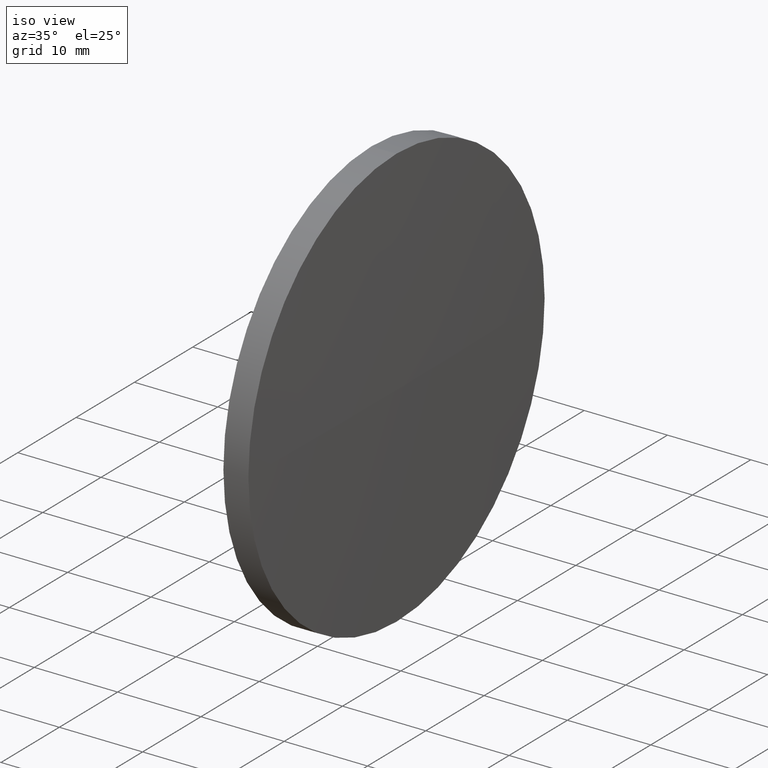
[diagram: clean part render]
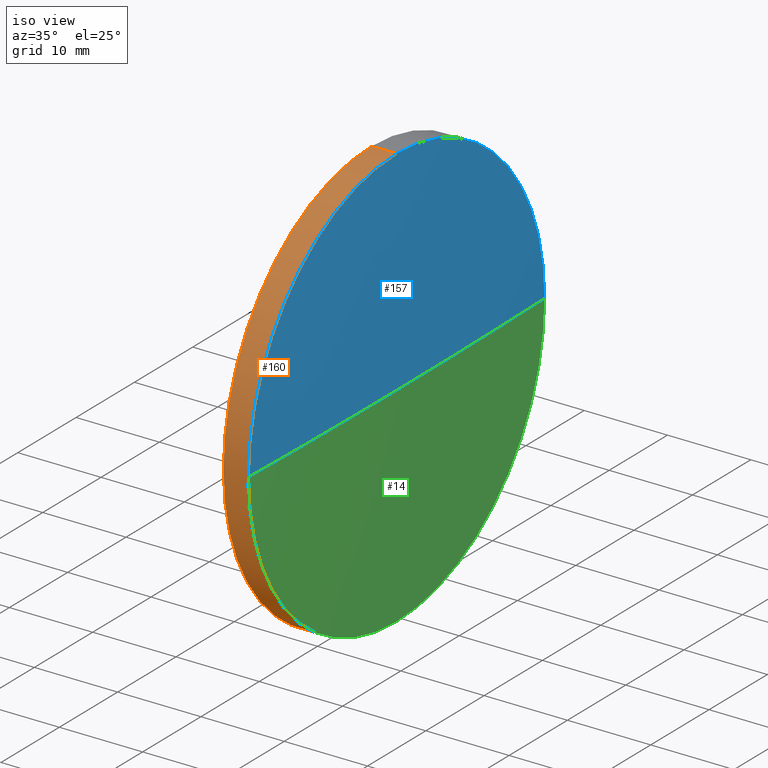
[diagram: same view with three faces highlighted in distinct colors, each labeled with its STEP entity id]
A machine part, iso view with three faces highlighted in distinct colors.
Their STEP definitions:

[orange] entity #160 — the highlighted cylindrical surface (partial cylindrical patch) has radius 25.4 mm, axis along (-1, -0, -0).
#1 = VECTOR ( 'NONE', #315, 1000.000000000000000 ) ;
#7 = VERTEX_POINT ( 'NONE', #260 ) ;
#22 = CARTESIAN_POINT ( 'NONE',  ( 165.7441079421506900, 97.23222604636956100, 0.0000000000000000000 ) ) ;
#42 = VERTEX_POINT ( 'NONE', #332 ) ;
#43 = DIRECTION ( 'NONE',  ( 0.0000000000000000000, 0.0000000000000000000, 1.000000000000000000 ) ) ;
#47 = ORIENTED_EDGE ( 'NONE', *, *, #316, .F. ) ;
#48 = VECTOR ( 'NONE', #186, 1000.000000000000000 ) ;
#64 = AXIS2_PLACEMENT_3D ( 'NONE', #304, #170, #297 ) ;
#81 = EDGE_CURVE ( 'NONE', #285, #42, #266, .T. ) ;
#89 = ORIENTED_EDGE ( 'NONE', *, *, #90, .T. ) ;
#90 = EDGE_CURVE ( 'NONE', #285, #7, #126, .T. ) ;
#95 = AXIS2_PLACEMENT_3D ( 'NONE', #293, #124, #291 ) ;
#105 = CARTESIAN_POINT ( 'NONE',  ( 171.4164086921822200, 97.23222604636956100, 0.0000000000000000000 ) ) ;
#108 = CIRCLE ( 'NONE', #64, 25.39999999999999100 ) ;
#124 = DIRECTION ( 'NONE',  ( -1.000000000000000000, -0.0000000000000000000, -0.0000000000000000000 ) ) ;
#126 = CIRCLE ( 'NONE', #95, 25.39999999999999100 ) ;
#136 = EDGE_CURVE ( 'NONE', #223, #199, #270, .T. ) ;
#138 = CYLINDRICAL_SURFACE ( 'NONE', #246, 25.39999999999999100 ) ;
#160 = ADVANCED_FACE ( 'NONE', ( #234 ), #138, .T. ) ;
#162 = ORIENTED_EDGE ( 'NONE', *, *, #136, .T. ) ;
#169 = DIRECTION ( 'NONE',  ( 0.0000000000000000000, 0.0000000000000000000, 1.000000000000000000 ) ) ;
#170 = DIRECTION ( 'NONE',  ( -1.000000000000000000, -0.0000000000000000000, -0.0000000000000000000 ) ) ;
#184 = EDGE_CURVE ( 'NONE', #219, #199, #207, .T. ) ;
#185 = ORIENTED_EDGE ( 'NONE', *, *, #184, .F. ) ;
#186 = DIRECTION ( 'NONE',  ( -1.000000000000000000, -0.0000000000000000000, -0.0000000000000000000 ) ) ;
#199 = VERTEX_POINT ( 'NONE', #317 ) ;
#202 = EDGE_LOOP ( 'NONE', ( #233, #89, #259, #162, #185, #47 ) ) ;
#207 = CIRCLE ( 'NONE', #257, 25.39999999999999100 ) ;
#215 = CARTESIAN_POINT ( 'NONE',  ( 171.4164086921822200, 71.83222604637038000, -3.110602869834187700E-015 ) ) ;
#219 = VERTEX_POINT ( 'NONE', #215 ) ;
#221 = DIRECTION ( 'NONE',  ( -1.000000000000000000, -0.0000000000000000000, -0.0000000000000000000 ) ) ;
#223 = VERTEX_POINT ( 'NONE', #320 ) ;
#233 = ORIENTED_EDGE ( 'NONE', *, *, #81, .F. ) ;
#234 = FACE_OUTER_BOUND ( 'NONE', #202, .T. ) ;
#238 = EDGE_CURVE ( 'NONE', #7, #223, #256, .T. ) ;
#242 = CARTESIAN_POINT ( 'NONE',  ( 165.7441079421506900, 97.23222604636956100, 25.39999999999999100 ) ) ;
#245 = DIRECTION ( 'NONE',  ( -1.000000000000000000, -0.0000000000000000000, -0.0000000000000000000 ) ) ;
#246 = AXIS2_PLACEMENT_3D ( 'NONE', #22, #301, #43 ) ;
#248 = CARTESIAN_POINT ( 'NONE',  ( 174.4163664064679400, 97.23222604636956100, -25.39999999999999100 ) ) ;
#256 = CIRCLE ( 'NONE', #282, 25.39999999999999100 ) ;
#257 = AXIS2_PLACEMENT_3D ( 'NONE', #105, #221, #299 ) ;
#259 = ORIENTED_EDGE ( 'NONE', *, *, #238, .T. ) ;
#260 = CARTESIAN_POINT ( 'NONE',  ( 174.4163664064679700, 71.83222604636755200, -3.110602869834376700E-015 ) ) ;
#266 = LINE ( 'NONE', #337, #1 ) ;
#270 = LINE ( 'NONE', #242, #48 ) ;
#282 = AXIS2_PLACEMENT_3D ( 'NONE', #300, #245, #169 ) ;
#285 = VERTEX_POINT ( 'NONE', #248 ) ;
#291 = DIRECTION ( 'NONE',  ( 0.0000000000000000000, 0.0000000000000000000, 1.000000000000000000 ) ) ;
#293 = CARTESIAN_POINT ( 'NONE',  ( 174.4163664064679400, 97.23222604636956100, 0.0000000000000000000 ) ) ;
#297 = DIRECTION ( 'NONE',  ( 0.0000000000000000000, 0.0000000000000000000, 1.000000000000000000 ) ) ;
#299 = DIRECTION ( 'NONE',  ( 0.0000000000000000000, 0.0000000000000000000, 1.000000000000000000 ) ) ;
#300 = CARTESIAN_POINT ( 'NONE',  ( 174.4163664064679400, 97.23222604636956100, 0.0000000000000000000 ) ) ;
#301 = DIRECTION ( 'NONE',  ( -1.000000000000000000, -0.0000000000000000000, -0.0000000000000000000 ) ) ;
#304 = CARTESIAN_POINT ( 'NONE',  ( 171.4164086921822200, 97.23222604636956100, 0.0000000000000000000 ) ) ;
#315 = DIRECTION ( 'NONE',  ( -1.000000000000000000, -0.0000000000000000000, -0.0000000000000000000 ) ) ;
#316 = EDGE_CURVE ( 'NONE', #42, #219, #108, .T. ) ;
#317 = CARTESIAN_POINT ( 'NONE',  ( 171.4164086921822200, 97.23222604636956100, 25.39999999999999100 ) ) ;
#320 = CARTESIAN_POINT ( 'NONE',  ( 174.4163664064679400, 97.23222604636956100, 25.39999999999999100 ) ) ;
#332 = CARTESIAN_POINT ( 'NONE',  ( 171.4164086921822200, 97.23222604636956100, -25.39999999999999100 ) ) ;
#337 = CARTESIAN_POINT ( 'NONE',  ( 165.7441079421506900, 97.23222604636956100, -25.39999999999999100 ) ) ;

[blue] entity #157 — the highlighted spherical surface has radius 921.781 mm.
#2 = AXIS2_PLACEMENT_3D ( 'NONE', #11, #34, #241 ) ;
#6 = EDGE_CURVE ( 'NONE', #223, #303, #261, .T. ) ;
#7 = VERTEX_POINT ( 'NONE', #260 ) ;
#11 = CARTESIAN_POINT ( 'NONE',  ( 174.4163664064679400, 97.23222604636956100, 0.0000000000000000000 ) ) ;
#18 = CARTESIAN_POINT ( 'NONE',  ( 174.7663856636108100, 97.23222604636841000, 0.0000000000000000000 ) ) ;
#19 = ORIENTED_EDGE ( 'NONE', *, *, #238, .F. ) ;
#34 = DIRECTION ( 'NONE',  ( -1.000000000000000000, -0.0000000000000000000, -0.0000000000000000000 ) ) ;
#39 = CARTESIAN_POINT ( 'NONE',  ( 174.4163664064679700, 122.6322260463703800, 0.0000000000000000000 ) ) ;
#44 = DIRECTION ( 'NONE',  ( 0.0000000000000000000, 1.224646799147353200E-016, -1.000000000000000000 ) ) ;
#66 = DIRECTION ( 'NONE',  ( 0.0000000000000000000, 1.000000000000000000, 0.0000000000000000000 ) ) ;
#68 = CARTESIAN_POINT ( 'NONE',  ( -747.0150596599935400, 97.23222604636835300, 0.0000000000000000000 ) ) ;
#74 = ORIENTED_EDGE ( 'NONE', *, *, #165, .T. ) ;
#99 = CIRCLE ( 'NONE', #208, 921.7814453236043200 ) ;
#103 = DIRECTION ( 'NONE',  ( -0.0000000000000000000, 0.0000000000000000000, -1.000000000000000000 ) ) ;
#110 = ORIENTED_EDGE ( 'NONE', *, *, #255, .F. ) ;
#134 = CARTESIAN_POINT ( 'NONE',  ( -747.0150596599935400, 97.23222604636835300, 0.0000000000000000000 ) ) ;
#157 = ADVANCED_FACE ( 'NONE', ( #308 ), #343, .T. ) ;
#165 = EDGE_CURVE ( 'NONE', #335, #303, #201, .T. ) ;
#169 = DIRECTION ( 'NONE',  ( 0.0000000000000000000, 0.0000000000000000000, 1.000000000000000000 ) ) ;
#201 = CIRCLE ( 'NONE', #211, 921.7814453236044300 ) ;
#208 = AXIS2_PLACEMENT_3D ( 'NONE', #273, #44, #344 ) ;
#211 = AXIS2_PLACEMENT_3D ( 'NONE', #68, #272, #244 ) ;
#223 = VERTEX_POINT ( 'NONE', #320 ) ;
#228 = AXIS2_PLACEMENT_3D ( 'NONE', #134, #103, #66 ) ;
#238 = EDGE_CURVE ( 'NONE', #7, #223, #256, .T. ) ;
#241 = DIRECTION ( 'NONE',  ( 0.0000000000000000000, 0.0000000000000000000, 1.000000000000000000 ) ) ;
#244 = DIRECTION ( 'NONE',  ( 1.000000000000000000, 0.0000000000000000000, 0.0000000000000000000 ) ) ;
#245 = DIRECTION ( 'NONE',  ( -1.000000000000000000, -0.0000000000000000000, -0.0000000000000000000 ) ) ;
#255 = EDGE_CURVE ( 'NONE', #335, #7, #99, .T. ) ;
#256 = CIRCLE ( 'NONE', #282, 25.39999999999999100 ) ;
#260 = CARTESIAN_POINT ( 'NONE',  ( 174.4163664064679700, 71.83222604636755200, -3.110602869834376700E-015 ) ) ;
#261 = CIRCLE ( 'NONE', #2, 25.39999999999999100 ) ;
#272 = DIRECTION ( 'NONE',  ( -0.0000000000000000000, 0.0000000000000000000, 1.000000000000000000 ) ) ;
#273 = CARTESIAN_POINT ( 'NONE',  ( -747.0150596599935400, 97.23222604636835300, 0.0000000000000000000 ) ) ;
#282 = AXIS2_PLACEMENT_3D ( 'NONE', #300, #245, #169 ) ;
#300 = CARTESIAN_POINT ( 'NONE',  ( 174.4163664064679400, 97.23222604636956100, 0.0000000000000000000 ) ) ;
#303 = VERTEX_POINT ( 'NONE', #39 ) ;
#308 = FACE_OUTER_BOUND ( 'NONE', #325, .T. ) ;
#320 = CARTESIAN_POINT ( 'NONE',  ( 174.4163664064679400, 97.23222604636956100, 25.39999999999999100 ) ) ;
#325 = EDGE_LOOP ( 'NONE', ( #110, #74, #336, #19 ) ) ;
#335 = VERTEX_POINT ( 'NONE', #18 ) ;
#336 = ORIENTED_EDGE ( 'NONE', *, *, #6, .F. ) ;
#343 = SPHERICAL_SURFACE ( 'NONE', #228, 921.7814453236044300 ) ;
#344 = DIRECTION ( 'NONE',  ( 0.0000000000000000000, 1.000000000000000000, 1.224646799147353500E-016 ) ) ;

[green] entity #14 — the highlighted spherical surface has radius 921.781 mm.
#7 = VERTEX_POINT ( 'NONE', #260 ) ;
#14 = ADVANCED_FACE ( 'NONE', ( #328 ), #247, .T. ) ;
#18 = CARTESIAN_POINT ( 'NONE',  ( 174.7663856636108100, 97.23222604636841000, 0.0000000000000000000 ) ) ;
#36 = DIRECTION ( 'NONE',  ( 0.0000000000000000000, 1.000000000000000000, 0.0000000000000000000 ) ) ;
#39 = CARTESIAN_POINT ( 'NONE',  ( 174.4163664064679700, 122.6322260463703800, 0.0000000000000000000 ) ) ;
#44 = DIRECTION ( 'NONE',  ( 0.0000000000000000000, 1.224646799147353200E-016, -1.000000000000000000 ) ) ;
#60 = DIRECTION ( 'NONE',  ( -1.000000000000000000, -0.0000000000000000000, -0.0000000000000000000 ) ) ;
#68 = CARTESIAN_POINT ( 'NONE',  ( -747.0150596599935400, 97.23222604636835300, 0.0000000000000000000 ) ) ;
#73 = EDGE_CURVE ( 'NONE', #303, #285, #75, .T. ) ;
#75 = CIRCLE ( 'NONE', #129, 25.39999999999999100 ) ;
#84 = ORIENTED_EDGE ( 'NONE', *, *, #165, .F. ) ;
#90 = EDGE_CURVE ( 'NONE', #285, #7, #126, .T. ) ;
#95 = AXIS2_PLACEMENT_3D ( 'NONE', #293, #124, #291 ) ;
#97 = CARTESIAN_POINT ( 'NONE',  ( 174.4163664064679400, 97.23222604636956100, 0.0000000000000000000 ) ) ;
#99 = CIRCLE ( 'NONE', #208, 921.7814453236043200 ) ;
#116 = AXIS2_PLACEMENT_3D ( 'NONE', #338, #159, #36 ) ;
#124 = DIRECTION ( 'NONE',  ( -1.000000000000000000, -0.0000000000000000000, -0.0000000000000000000 ) ) ;
#126 = CIRCLE ( 'NONE', #95, 25.39999999999999100 ) ;
#127 = DIRECTION ( 'NONE',  ( 0.0000000000000000000, 0.0000000000000000000, 1.000000000000000000 ) ) ;
#129 = AXIS2_PLACEMENT_3D ( 'NONE', #97, #60, #127 ) ;
#148 = ORIENTED_EDGE ( 'NONE', *, *, #255, .T. ) ;
#159 = DIRECTION ( 'NONE',  ( -0.0000000000000000000, 0.0000000000000000000, -1.000000000000000000 ) ) ;
#165 = EDGE_CURVE ( 'NONE', #335, #303, #201, .T. ) ;
#201 = CIRCLE ( 'NONE', #211, 921.7814453236044300 ) ;
#208 = AXIS2_PLACEMENT_3D ( 'NONE', #273, #44, #344 ) ;
#211 = AXIS2_PLACEMENT_3D ( 'NONE', #68, #272, #244 ) ;
#244 = DIRECTION ( 'NONE',  ( 1.000000000000000000, 0.0000000000000000000, 0.0000000000000000000 ) ) ;
#247 = SPHERICAL_SURFACE ( 'NONE', #116, 921.7814453236044300 ) ;
#248 = CARTESIAN_POINT ( 'NONE',  ( 174.4163664064679400, 97.23222604636956100, -25.39999999999999100 ) ) ;
#255 = EDGE_CURVE ( 'NONE', #335, #7, #99, .T. ) ;
#260 = CARTESIAN_POINT ( 'NONE',  ( 174.4163664064679700, 71.83222604636755200, -3.110602869834376700E-015 ) ) ;
#272 = DIRECTION ( 'NONE',  ( -0.0000000000000000000, 0.0000000000000000000, 1.000000000000000000 ) ) ;
#273 = CARTESIAN_POINT ( 'NONE',  ( -747.0150596599935400, 97.23222604636835300, 0.0000000000000000000 ) ) ;
#285 = VERTEX_POINT ( 'NONE', #248 ) ;
#288 = EDGE_LOOP ( 'NONE', ( #84, #148, #334, #323 ) ) ;
#291 = DIRECTION ( 'NONE',  ( 0.0000000000000000000, 0.0000000000000000000, 1.000000000000000000 ) ) ;
#293 = CARTESIAN_POINT ( 'NONE',  ( 174.4163664064679400, 97.23222604636956100, 0.0000000000000000000 ) ) ;
#303 = VERTEX_POINT ( 'NONE', #39 ) ;
#323 = ORIENTED_EDGE ( 'NONE', *, *, #73, .F. ) ;
#328 = FACE_OUTER_BOUND ( 'NONE', #288, .T. ) ;
#334 = ORIENTED_EDGE ( 'NONE', *, *, #90, .F. ) ;
#335 = VERTEX_POINT ( 'NONE', #18 ) ;
#338 = CARTESIAN_POINT ( 'NONE',  ( -747.0150596599935400, 97.23222604636835300, 0.0000000000000000000 ) ) ;
#344 = DIRECTION ( 'NONE',  ( 0.0000000000000000000, 1.000000000000000000, 1.224646799147353500E-016 ) ) ;